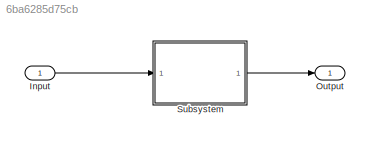
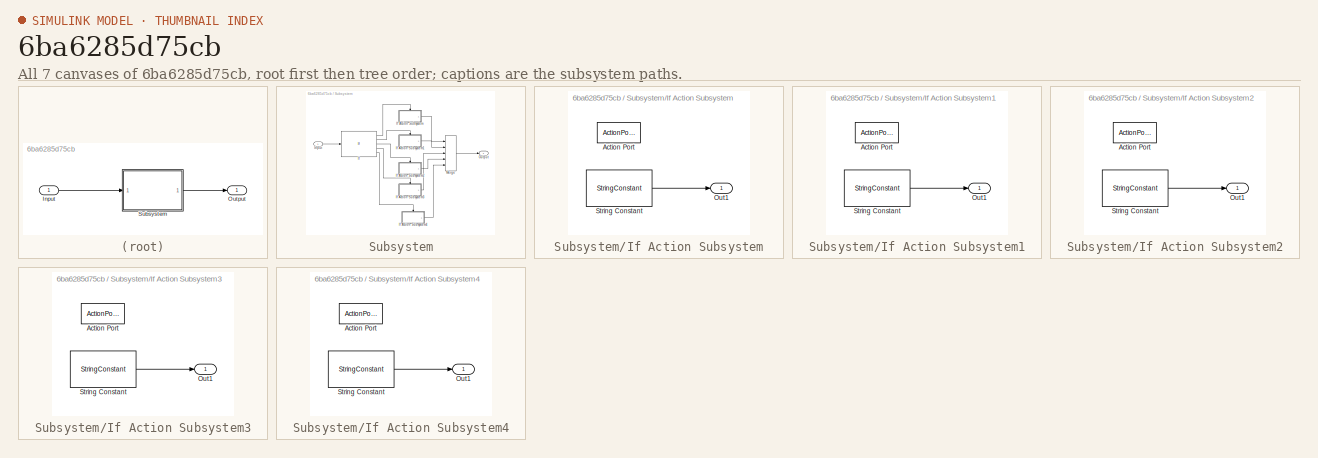
[diagram: thumbnail index - all 7 canvases of the model, root first then tree order]
MODEL slx_6ba6285d75cb
KIND model
CONFIG AbsTol = auto
CONFIG EnableMultiTasking = off
CONFIG FixedStep = auto
CONFIG MaxStep = auto
CONFIG MinStep = auto
CONFIG RelTol = 1e-3
CONFIG SampleTimeConstraint = Unconstrained
CONFIG SolverName = VariableStepAuto
CONFIG StartTime = 0.0
CONFIG StopTime = 10.0
BLOCK [Inport] Input
BLOCK [Outport] Output
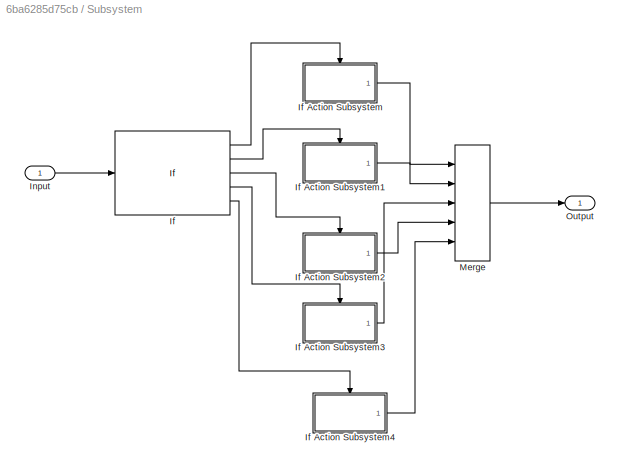
BLOCK [SubSystem] Subsystem
  Ports = [1, 1]
  RequestExecContextInheritance = off
BLOCK [If] Subsystem/If
  ElseIfExpressions = u1 >= 50 & u1<65,u1 >= 65 & u1<75,u1 >= 75 & u1<85,u1>=85
  IfExpression = u1 < 50
  Ports = [1, 5]
  ShowElse = off
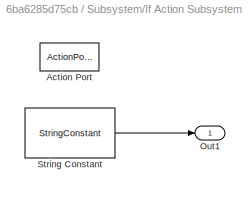
BLOCK [SubSystem] Subsystem/If Action Subsystem
  Ports = [0, 1, 0, 0, 0, 0, 0, 1]
  RequestExecContextInheritance = off
  TreatAsAtomicUnit = on
BLOCK [ActionPort] Subsystem/If Action Subsystem/Action Port
  ActionPortLabel = if(u1 < 50)
BLOCK [Outport] Subsystem/If Action Subsystem/Out1
BLOCK [StringConstant] Subsystem/If Action Subsystem/String Constant
  String = "Failed!"
BLOCK [SubSystem] Subsystem/If Action Subsystem1
  Ports = [0, 1, 0, 0, 0, 0, 0, 1]
  RequestExecContextInheritance = off
  TreatAsAtomicUnit = on
BLOCK [ActionPort] Subsystem/If Action Subsystem1/Action Port
  ActionPortLabel = elseif(u1 >= 50 & u1<65)
BLOCK [Outport] Subsystem/If Action Subsystem1/Out1
BLOCK [StringConstant] Subsystem/If Action Subsystem1/String Constant
  String = "D"
BLOCK [SubSystem] Subsystem/If Action Subsystem2
  Ports = [0, 1, 0, 0, 0, 0, 0, 1]
  RequestExecContextInheritance = off
  TreatAsAtomicUnit = on
BLOCK [ActionPort] Subsystem/If Action Subsystem2/Action Port
  ActionPortLabel = elseif(u1 >= 65 & u1<75)
BLOCK [Outport] Subsystem/If Action Subsystem2/Out1
BLOCK [StringConstant] Subsystem/If Action Subsystem2/String Constant
  String = "C"
BLOCK [SubSystem] Subsystem/If Action Subsystem3
  Ports = [0, 1, 0, 0, 0, 0, 0, 1]
  RequestExecContextInheritance = off
  TreatAsAtomicUnit = on
BLOCK [ActionPort] Subsystem/If Action Subsystem3/Action Port
  ActionPortLabel = elseif(u1 >= 75 & u1<85)
BLOCK [Outport] Subsystem/If Action Subsystem3/Out1
BLOCK [StringConstant] Subsystem/If Action Subsystem3/String Constant
  String = "B"
BLOCK [SubSystem] Subsystem/If Action Subsystem4
  Ports = [0, 1, 0, 0, 0, 0, 0, 1]
  RequestExecContextInheritance = off
  TreatAsAtomicUnit = on
BLOCK [ActionPort] Subsystem/If Action Subsystem4/Action Port
  ActionPortLabel = elseif(u1>=85)
BLOCK [Outport] Subsystem/If Action Subsystem4/Out1
BLOCK [StringConstant] Subsystem/If Action Subsystem4/String Constant
  String = "A"
BLOCK [Inport] Subsystem/Input
BLOCK [Merge] Subsystem/Merge
  Inputs = 5
  Ports = [5, 1]
BLOCK [Outport] Subsystem/Output
LINE Input:1 -> Subsystem:1
LINE Subsystem/If Action Subsystem/String Constant:1 -> Subsystem/If Action Subsystem/Out1:1
LINE Subsystem/If Action Subsystem1/String Constant:1 -> Subsystem/If Action Subsystem1/Out1:1
LINE Subsystem/If Action Subsystem1:1 -> Subsystem/Merge:2
LINE Subsystem/If Action Subsystem2/String Constant:1 -> Subsystem/If Action Subsystem2/Out1:1
LINE Subsystem/If Action Subsystem2:1 -> Subsystem/Merge:4
LINE Subsystem/If Action Subsystem3/String Constant:1 -> Subsystem/If Action Subsystem3/Out1:1
LINE Subsystem/If Action Subsystem3:1 -> Subsystem/Merge:3
LINE Subsystem/If Action Subsystem4/String Constant:1 -> Subsystem/If Action Subsystem4/Out1:1
LINE Subsystem/If Action Subsystem4:1 -> Subsystem/Merge:5
LINE Subsystem/If Action Subsystem:1 -> Subsystem/Merge:1
LINE Subsystem/If:1 -> Subsystem/If Action Subsystem:ifaction
LINE Subsystem/If:2 -> Subsystem/If Action Subsystem1:ifaction
LINE Subsystem/If:3 -> Subsystem/If Action Subsystem2:ifaction
LINE Subsystem/If:4 -> Subsystem/If Action Subsystem3:ifaction
LINE Subsystem/If:5 -> Subsystem/If Action Subsystem4:ifaction
LINE Subsystem/Input:1 -> Subsystem/If:1
LINE Subsystem/Merge:1 -> Subsystem/Output:1
LINE Subsystem:1 -> Output:1
